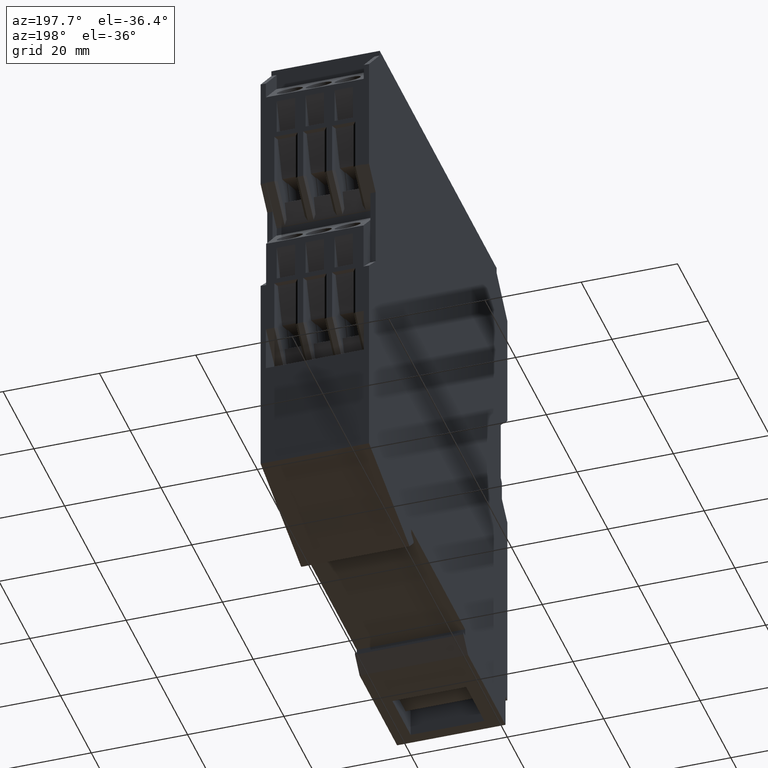
[diagram: clean part render]
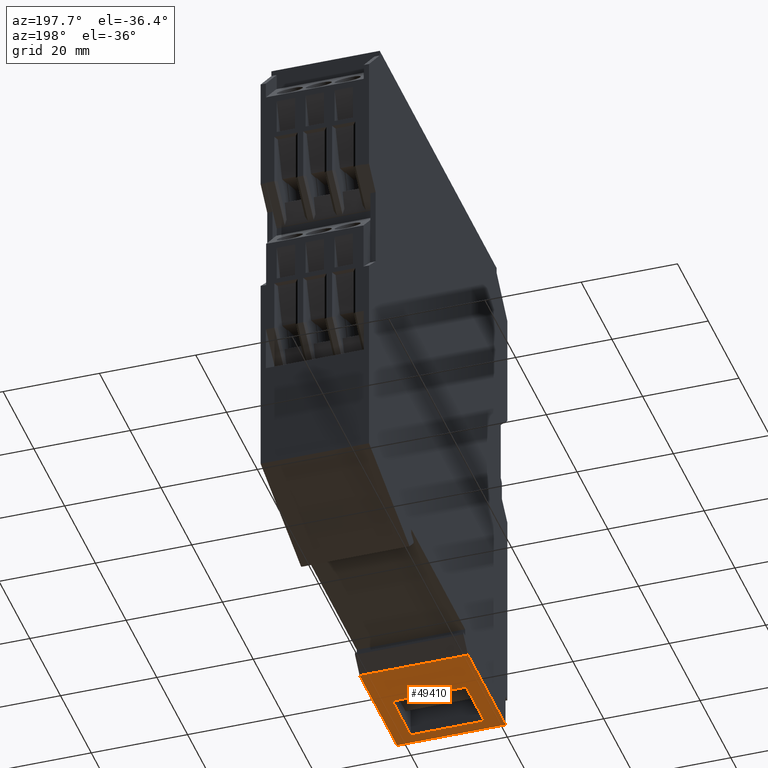
[diagram: same view with one face highlighted and labeled with its STEP entity id]
A machine part, auxiliary view. The second image highlights one B-rep face of the part: STEP entity #49410.
In plain terms, the highlighted planar face has unit normal (0, 0, 1).
Its self-contained STEP definition (entity closure, byte-faithful):
#600=CARTESIAN_POINT('',(-11.1893993066638,-46.9512360534802,
55.5000000000012));
#610=VERTEX_POINT('',#600);
#640=CARTESIAN_POINT('',(-11.1893993066638,-30.5124090727715,
55.5000000000012));
#650=DIRECTION('',(0.,-1.,0.));
#660=VECTOR('',#650,1.);
#670=LINE('',#640,#660);
#680=CARTESIAN_POINT('',(-11.1893993066638,-22.5512360534807,
55.5000000000012));
#690=VERTEX_POINT('',#680);
#700=EDGE_CURVE('',#690,#610,#670,.T.);
#48770=CARTESIAN_POINT('',(-11.1893993066638,-46.9512360534802,
55.5000000000012));
#48780=DIRECTION('',(-0.,0.,1.));
#48790=DIRECTION('',(0.,-1.,0.));
#48800=AXIS2_PLACEMENT_3D('',#48770,#48780,#48790);
#48810=PLANE('',#48800);
#48820=CARTESIAN_POINT('',(0.,-44.4512360534802,55.5000000000012));
#48830=DIRECTION('',(-1.,0.,0.));
#48840=VECTOR('',#48830,1.);
#48850=LINE('',#48820,#48840);
#48860=CARTESIAN_POINT('',(7.71060069333618,-44.4512360534802,
55.5000000000012));
#48870=VERTEX_POINT('',#48860);
#48880=CARTESIAN_POINT('',(-7.58939930666381,-44.4512360534802,
55.5000000000012));
#48890=VERTEX_POINT('',#48880);
#48900=EDGE_CURVE('',#48870,#48890,#48850,.T.);
#48910=ORIENTED_EDGE('',*,*,#48900,.F.);
#48920=CARTESIAN_POINT('',(-7.58939930666381,0.,55.5000000000012));
#48930=DIRECTION('',(0.,-1.,0.));
#48940=VECTOR('',#48930,1.);
#48950=LINE('',#48920,#48940);
#48960=CARTESIAN_POINT('',(-7.58939930666381,-32.60123605348,
55.5000000000012));
#48970=VERTEX_POINT('',#48960);
#48980=EDGE_CURVE('',#48970,#48890,#48950,.T.);
#48990=ORIENTED_EDGE('',*,*,#48980,.T.);
#49000=CARTESIAN_POINT('',(0.,-32.60123605348,55.5000000000012));
#49010=DIRECTION('',(-1.,0.,0.));
#49020=VECTOR('',#49010,1.);
#49030=LINE('',#49000,#49020);
#49040=CARTESIAN_POINT('',(7.71060069333618,-32.60123605348,
55.5000000000012));
#49050=VERTEX_POINT('',#49040);
#49060=EDGE_CURVE('',#49050,#48970,#49030,.T.);
#49070=ORIENTED_EDGE('',*,*,#49060,.T.);
#49080=CARTESIAN_POINT('',(7.71060069333618,0.,55.5000000000012));
#49090=DIRECTION('',(0.,1.,0.));
#49100=VECTOR('',#49090,1.);
#49110=LINE('',#49080,#49100);
#49120=EDGE_CURVE('',#48870,#49050,#49110,.T.);
#49130=ORIENTED_EDGE('',*,*,#49120,.T.);
#49140=EDGE_LOOP('',(#49130,#49070,#48990,#48910));
#49150=FACE_BOUND('',#49140,.T.);
#49160=ORIENTED_EDGE('',*,*,#700,.F.);
#49170=CARTESIAN_POINT('',(0.,-46.9512360534802,55.5000000000012));
#49180=DIRECTION('',(1.,0.,0.));
#49190=VECTOR('',#49180,1.);
#49200=LINE('',#49170,#49190);
#49210=CARTESIAN_POINT('',(11.3106006933362,-46.9512360534802,
55.5000000000012));
#49220=VERTEX_POINT('',#49210);
#49230=EDGE_CURVE('',#610,#49220,#49200,.T.);
#49240=ORIENTED_EDGE('',*,*,#49230,.F.);
#49250=CARTESIAN_POINT('',(11.3106006933362,0.,55.5000000000012));
#49260=DIRECTION('',(0.,1.,0.));
#49270=VECTOR('',#49260,1.);
#49280=LINE('',#49250,#49270);
#49290=CARTESIAN_POINT('',(11.3106006933362,-22.5512360534807,
55.5000000000012));
#49300=VERTEX_POINT('',#49290);
#49310=EDGE_CURVE('',#49220,#49300,#49280,.T.);
#49320=ORIENTED_EDGE('',*,*,#49310,.F.);
#49330=CARTESIAN_POINT('',(0.,-22.5512360534807,55.5000000000012));
#49340=DIRECTION('',(1.,0.,0.));
#49350=VECTOR('',#49340,1.);
#49360=LINE('',#49330,#49350);
#49370=EDGE_CURVE('',#690,#49300,#49360,.T.);
#49380=ORIENTED_EDGE('',*,*,#49370,.T.);
#49390=EDGE_LOOP('',(#49380,#49320,#49240,#49160));
#49400=FACE_OUTER_BOUND('',#49390,.T.);
#49410=ADVANCED_FACE('',(#49150,#49400),#48810,.F.);